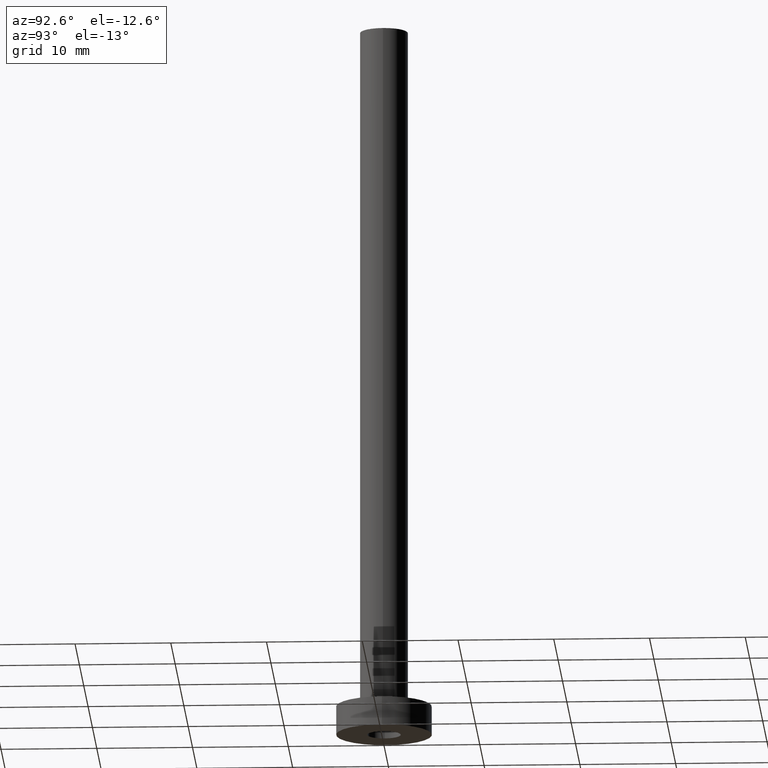
[diagram: clean part render]
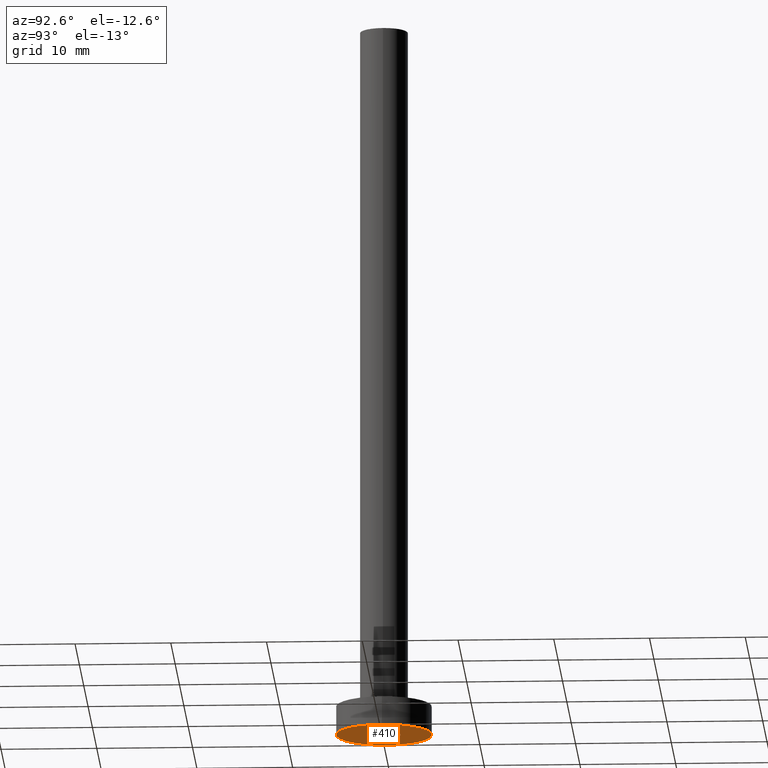
[diagram: same view with one face highlighted and labeled with its STEP entity id]
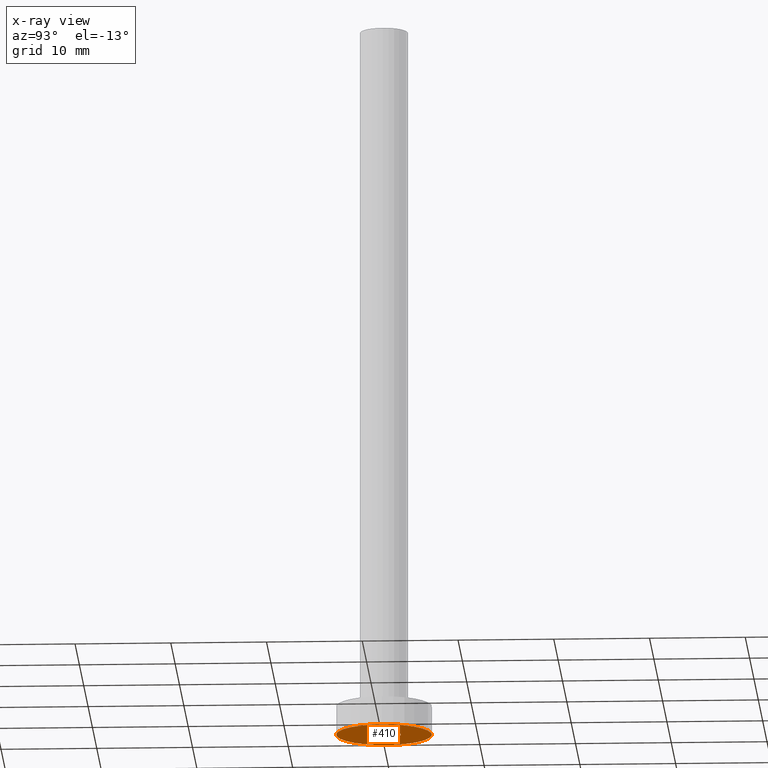
[diagram: x-ray of the same camera — body ghosted, the highlighted face saturated]
A machine part, auxiliary view. The second image highlights one B-rep face of the part: STEP entity #410.
The next image is the same camera in x-ray: the body ghosted, the highlighted face saturated — about 0% of this face is hidden behind the body in this view.
In plain terms, the highlighted planar face has unit normal (0, 0, 1).
Its self-contained STEP definition (entity closure, byte-faithful):
#13 = VERTEX_POINT ( 'NONE', #353 ) ;
#24 = AXIS2_PLACEMENT_3D ( 'NONE', #75, #318, #456 ) ;
#37 = ORIENTED_EDGE ( 'NONE', *, *, #443, .F. ) ;
#47 = CARTESIAN_POINT ( 'NONE',  ( 0.000000000000000000, 0.000000000000000000, 0.000000000000000000 ) ) ;
#68 = CARTESIAN_POINT ( 'NONE',  ( -1.750000000000000000, 0.000000000000000000, 0.000000000000000000 ) ) ;
#73 = VERTEX_POINT ( 'NONE', #397 ) ;
#75 = CARTESIAN_POINT ( 'NONE',  ( 0.000000000000000000, 0.000000000000000000, 0.000000000000000000 ) ) ;
#102 = FACE_BOUND ( 'NONE', #190, .T. ) ;
#115 = CIRCLE ( 'NONE', #423, 1.750000000000000000 ) ;
#143 = CARTESIAN_POINT ( 'NONE',  ( 0.000000000000000000, 0.000000000000000000, 0.000000000000000000 ) ) ;
#159 = DIRECTION ( 'NONE',  ( 0.000000000000000000, 0.000000000000000000, 1.000000000000000000 ) ) ;
#162 = ORIENTED_EDGE ( 'NONE', *, *, #194, .F. ) ;
#167 = EDGE_CURVE ( 'NONE', #73, #179, #426, .T. ) ;
#172 = EDGE_LOOP ( 'NONE', ( #37, #176 ) ) ;
#173 = CARTESIAN_POINT ( 'NONE',  ( 0.000000000000000000, 0.000000000000000000, 0.000000000000000000 ) ) ;
#176 = ORIENTED_EDGE ( 'NONE', *, *, #167, .F. ) ;
#179 = VERTEX_POINT ( 'NONE', #327 ) ;
#190 = EDGE_LOOP ( 'NONE', ( #394, #162 ) ) ;
#194 = EDGE_CURVE ( 'NONE', #13, #450, #359, .T. ) ;
#211 = DIRECTION ( 'NONE',  ( 1.000000000000000000, 0.000000000000000000, 0.000000000000000000 ) ) ;
#232 = PLANE ( 'NONE',  #24 ) ;
#269 = AXIS2_PLACEMENT_3D ( 'NONE', #173, #380, #211 ) ;
#279 = DIRECTION ( 'NONE',  ( 1.000000000000000000, 0.000000000000000000, 0.000000000000000000 ) ) ;
#280 = AXIS2_PLACEMENT_3D ( 'NONE', #47, #330, #305 ) ;
#295 = DIRECTION ( 'NONE',  ( 1.000000000000000000, 0.000000000000000000, 0.000000000000000000 ) ) ;
#296 = AXIS2_PLACEMENT_3D ( 'NONE', #333, #159, #295 ) ;
#305 = DIRECTION ( 'NONE',  ( 1.000000000000000000, 0.000000000000000000, 0.000000000000000000 ) ) ;
#318 = DIRECTION ( 'NONE',  ( 0.000000000000000000, 0.000000000000000000, 1.000000000000000000 ) ) ;
#321 = FACE_OUTER_BOUND ( 'NONE', #172, .T. ) ;
#327 = CARTESIAN_POINT ( 'NONE',  ( -5.000000000000000000, 0.000000000000000000, 0.000000000000000000 ) ) ;
#330 = DIRECTION ( 'NONE',  ( -0.000000000000000000, -0.000000000000000000, -1.000000000000000000 ) ) ;
#333 = CARTESIAN_POINT ( 'NONE',  ( 0.000000000000000000, 0.000000000000000000, 0.000000000000000000 ) ) ;
#353 = CARTESIAN_POINT ( 'NONE',  ( 1.750000000000000000, 2.143131898507867804E-16, 0.000000000000000000 ) ) ;
#359 = CIRCLE ( 'NONE', #280, 1.750000000000000000 ) ;
#380 = DIRECTION ( 'NONE',  ( 0.000000000000000000, 0.000000000000000000, 1.000000000000000000 ) ) ;
#394 = ORIENTED_EDGE ( 'NONE', *, *, #436, .F. ) ;
#397 = CARTESIAN_POINT ( 'NONE',  ( 5.000000000000000000, 6.123233995736766282E-16, 0.000000000000000000 ) ) ;
#410 = ADVANCED_FACE ( 'NONE', ( #102, #321 ), #232, .F. ) ;
#414 = CIRCLE ( 'NONE', #269, 5.000000000000000000 ) ;
#423 = AXIS2_PLACEMENT_3D ( 'NONE', #143, #461, #279 ) ;
#426 = CIRCLE ( 'NONE', #296, 5.000000000000000000 ) ;
#436 = EDGE_CURVE ( 'NONE', #450, #13, #115, .T. ) ;
#443 = EDGE_CURVE ( 'NONE', #179, #73, #414, .T. ) ;
#450 = VERTEX_POINT ( 'NONE', #68 ) ;
#456 = DIRECTION ( 'NONE',  ( 1.000000000000000000, 0.000000000000000000, -0.000000000000000000 ) ) ;
#461 = DIRECTION ( 'NONE',  ( -0.000000000000000000, -0.000000000000000000, -1.000000000000000000 ) ) ;